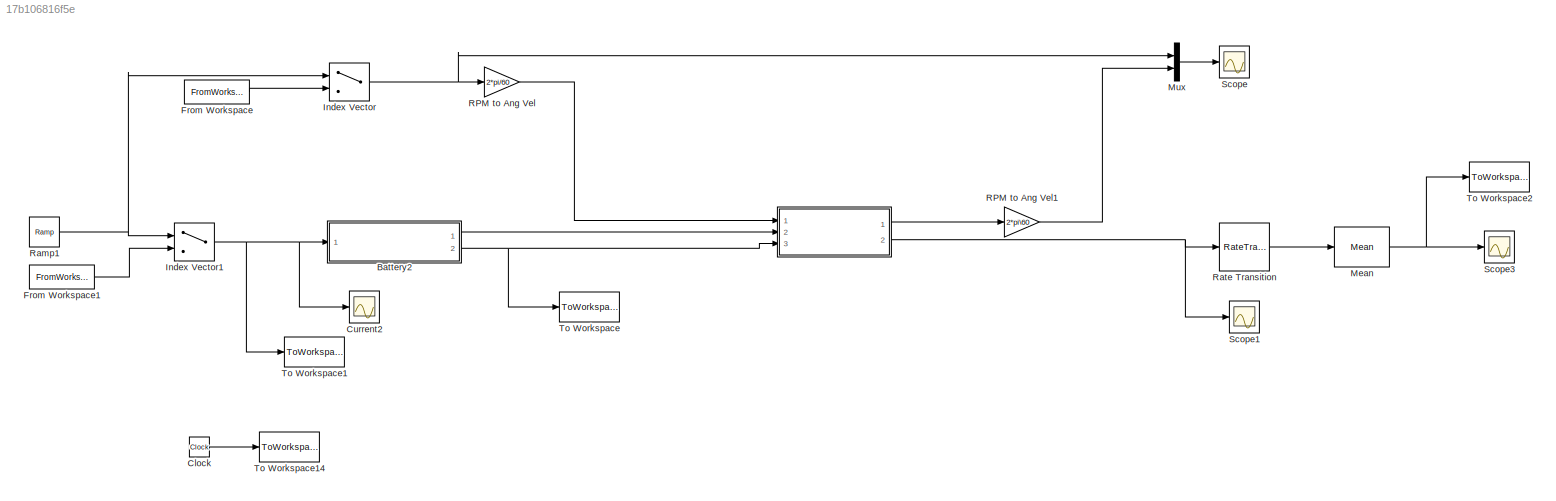
MODEL slx_17b106816f5e
KIND model
CONFIG AbsTol = auto
CONFIG EnableMultiTasking = off
CONFIG FixedStep = 0.001
CONFIG MaxStep = auto
CONFIG MinStep = auto
CONFIG RelTol = 1e-4
CONFIG SampleTimeConstraint = Unconstrained
CONFIG Solver = FixedStepAuto
CONFIG SolverName = FixedStepAuto
CONFIG StartTime = 0.0
CONFIG StopTime = 2500
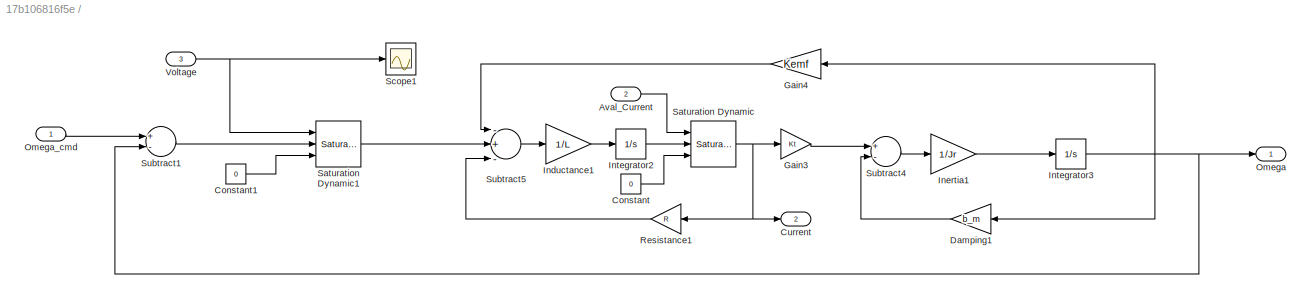
BLOCK [SubSystem]  
  Ports = [3, 2]
  RequestExecContextInheritance = off
  Variant = off
BLOCK [Inport]  /Aval_Current
  IconDisplay = Port number
  Port = 2
BLOCK [Constant]  /Constant
  Value = 0
BLOCK [Constant]  /Constant1
  Value = 0
BLOCK [Outport]  /Current 
  IconDisplay = Port number
  Port = 2
BLOCK [Gain]  /Damping1
  Gain = b_m
  OutDataTypeStr = Inherit: Inherit via internal rule
  ParamDataTypeStr = Inherit: Inherit via internal rule
  SaturateOnIntegerOverflow = off
BLOCK [Gain]  /Gain3
  Gain = Kt
  OutDataTypeStr = Inherit: Inherit via internal rule
  ParamDataTypeStr = Inherit: Inherit via internal rule
  SaturateOnIntegerOverflow = off
BLOCK [Gain]  /Gain4
  Gain = Kemf
  OutDataTypeStr = Inherit: Inherit via internal rule
  ParamDataTypeStr = Inherit: Inherit via internal rule
  SaturateOnIntegerOverflow = off
BLOCK [Gain]  /Inductance1
  Gain = 1/L
  OutDataTypeStr = Inherit: Inherit via internal rule
  ParamDataTypeStr = Inherit: Inherit via internal rule
  SaturateOnIntegerOverflow = off
BLOCK [Gain]  /Inertia1
  Gain = 1/Jr
  OutDataTypeStr = Inherit: Inherit via internal rule
  ParamDataTypeStr = Inherit: Inherit via internal rule
  SaturateOnIntegerOverflow = off
BLOCK [Integrator]  /Integrator2
  LimitOutput = on
  LowerSaturationLimit = 0
  Ports = [1, 1]
BLOCK [Integrator]  /Integrator3
  LimitOutput = on
  LowerSaturationLimit = 0
  Ports = [1, 1]
BLOCK [Outport]  /Omega
  IconDisplay = Port number
BLOCK [Inport]  /Omega_cmd
  IconDisplay = Port number
BLOCK [Gain]  /Resistance1
  Gain = R
  OutDataTypeStr = Inherit: Inherit via internal rule
  ParamDataTypeStr = Inherit: Inherit via internal rule
  SaturateOnIntegerOverflow = off
BLOCK [Reference]  /Saturation Dynamic  REF=simulink/Discontinuities/Saturation
Dynamic
  Ports = [3, 1]
  SourceBlock = simulink/Discontinuities/Saturation\nDynamic
  SourceProductBaseCode = SL
  SourceProductName = Simulink
  SourceType = Saturation Dynamic
BLOCK [Reference]  /Saturation Dynamic1  REF=simulink/Discontinuities/Saturation
Dynamic
  Ports = [3, 1]
  SourceBlock = simulink/Discontinuities/Saturation\nDynamic
  SourceProductBaseCode = SL
  SourceProductName = Simulink
  SourceType = Saturation Dynamic
BLOCK [Scope]  /Scope1
  NumInputPorts = 1
  Ports = [1]
  ScopeSpecificationString = Simulink.scopes.TimeScopeBlockCfg('CurrentConfiguration', extmgr.ConfigurationSet(extmgr.Configuration('Core','General UI',true),extmgr.Configuration('Core','Source UI',true),extmgr.Configuration('Sources','WiredSimulink',true,'DataLoggingVariableName','ScopeData6','DataLoggingSaveFormat','Array','DataLoggingDecimation','1'),extmgr.Configuration('Visuals','Time Domain',true,'SerializedDisplays',{s...<+1610ch>
BLOCK [Sum]  /Subtract1
  InputSameDT = off
  Inputs = +-
  OutDataTypeStr = Inherit: Inherit via internal rule
  Ports = [2, 1]
  SaturateOnIntegerOverflow = off
BLOCK [Sum]  /Subtract4
  InputSameDT = off
  Inputs = +-
  OutDataTypeStr = Inherit: Inherit via internal rule
  Ports = [2, 1]
  SaturateOnIntegerOverflow = off
BLOCK [Sum]  /Subtract5
  InputSameDT = off
  Inputs = -+-
  OutDataTypeStr = Inherit: Inherit via internal rule
  Ports = [3, 1]
  SaturateOnIntegerOverflow = off
BLOCK [Inport]  /Voltage
  IconDisplay = Port number
  Port = 3
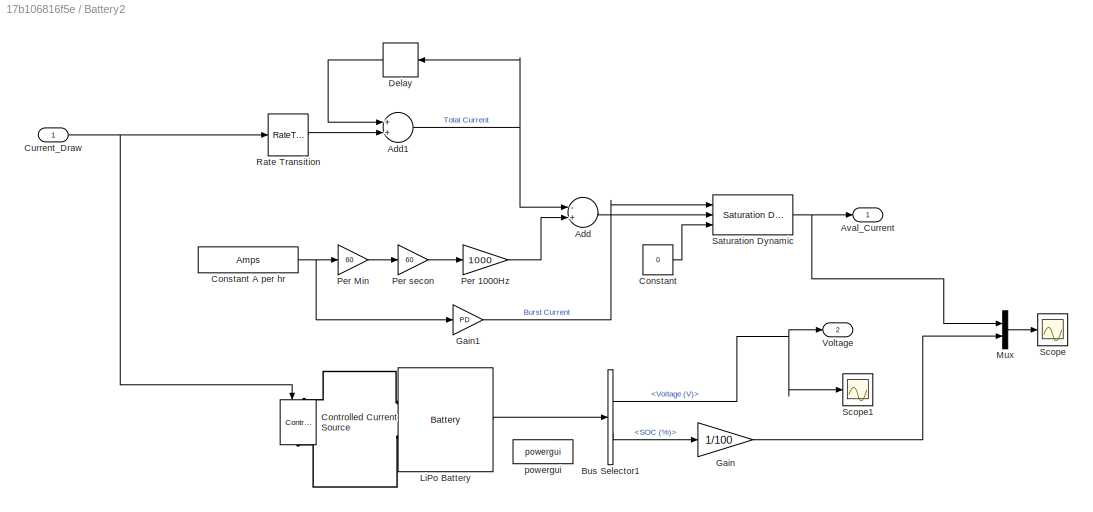
BLOCK [SubSystem] Battery2
  Ports = [1, 2]
  RequestExecContextInheritance = off
  Variant = off
BLOCK [Sum] Battery2/Add
  InputSameDT = off
  Inputs = -+
  OutDataTypeStr = Inherit: Inherit via internal rule
  Ports = [2, 1]
  SaturateOnIntegerOverflow = off
BLOCK [Sum] Battery2/Add1
  InputSameDT = off
  OutDataTypeStr = Inherit: Inherit via internal rule
  Ports = [2, 1]
  SaturateOnIntegerOverflow = off
BLOCK [Outport] Battery2/Aval_Current
  IconDisplay = Port number
BLOCK [BusSelector] Battery2/Bus Selector1
  OutputAsBus = off
  OutputSignals = Voltage (V),SOC (%)
  Ports = [1, 2]
BLOCK [Constant] Battery2/Constant
  Value = 0
BLOCK [Constant] Battery2/Constant A per hr
  Value = Amps
BLOCK [Reference] Battery2/Controlled Current Source  REF=powerlib/Electrical
Sources/Controlled Current Source
  Ports = [1, 0, 0, 0, 0, 1, 1]
  SourceBlock = powerlib/Electrical\nSources/Controlled Current Source
  SourceProductBaseCode = PS
  SourceProductName = Simscape Power Systems
  SourceType = Controlled Current Source
BLOCK [Inport] Battery2/Current_Draw
  IconDisplay = Port number
BLOCK [Delay] Battery2/Delay
  DelayLength = 1
  InitialCondition = 0
  InputPortMap = u0
  Ports = [1, 1]
BLOCK [Gain] Battery2/Gain
  Gain = 1/100
  OutDataTypeStr = Inherit: Inherit via internal rule
  ParamDataTypeStr = Inherit: Inherit via internal rule
  SaturateOnIntegerOverflow = off
BLOCK [Gain] Battery2/Gain1
  Gain = PD
  OutDataTypeStr = Inherit: Inherit via internal rule
  ParamDataTypeStr = Inherit: Inherit via internal rule
  SaturateOnIntegerOverflow = off
BLOCK [Reference] Battery2/LiPo Battery   REF=electricdrivelib/Extra Sources/Battery
  Ports = [0, 1, 0, 0, 0, 2]
  SourceBlock = electricdrivelib/Extra Sources/Battery
  SourceProductBaseCode = PS
  SourceProductName = Simscape Power Systems
  SourceType = Battery
BLOCK [Mux] Battery2/Mux
  DisplayOption = bar
  Inputs = 2
  Ports = [2, 1]
BLOCK [Gain] Battery2/Per 1000Hz
  Gain = 1000
  OutDataTypeStr = Inherit: Inherit via internal rule
  ParamDataTypeStr = Inherit: Inherit via internal rule
  SaturateOnIntegerOverflow = off
BLOCK [Gain] Battery2/Per Min
  Gain = 60
  OutDataTypeStr = Inherit: Inherit via internal rule
  ParamDataTypeStr = Inherit: Inherit via internal rule
  SaturateOnIntegerOverflow = off
BLOCK [Gain] Battery2/Per secon
  Gain = 60
  OutDataTypeStr = Inherit: Inherit via internal rule
  ParamDataTypeStr = Inherit: Inherit via internal rule
  SaturateOnIntegerOverflow = off
BLOCK [RateTransition] Battery2/Rate Transition
  OutPortSampleTime = 0.001
  OutPortSampleTimeMultiple = 0
BLOCK [Reference] Battery2/Saturation Dynamic  REF=simulink/Discontinuities/Saturation
Dynamic
  Ports = [3, 1]
  SourceBlock = simulink/Discontinuities/Saturation\nDynamic
  SourceProductBaseCode = SL
  SourceProductName = Simulink
  SourceType = Saturation Dynamic
BLOCK [Scope] Battery2/Scope
  NumInputPorts = 1
  Ports = [1]
  ScopeSpecificationString = Simulink.scopes.TimeScopeBlockCfg('CurrentConfiguration', extmgr.ConfigurationSet(extmgr.Configuration('Core','General UI',true),extmgr.Configuration('Core','Source UI',true),extmgr.Configuration('Sources','WiredSimulink',true,'DataLoggingVariableName','ScopeData1'),extmgr.Configuration('Visuals','Time Domain',true,'SerializedDisplays',{struct('MinYLimReal','-0.0305','MaxYLimReal','1.1145','YLabel...<+1427ch>
BLOCK [Scope] Battery2/Scope1
  NumInputPorts = 1
  Ports = [1]
  ScopeSpecificationString = Simulink.scopes.TimeScopeBlockCfg('CurrentConfiguration', extmgr.ConfigurationSet(extmgr.Configuration('Core','General UI',true),extmgr.Configuration('Core','Source UI',true),extmgr.Configuration('Sources','WiredSimulink',true,'DataLoggingVariableName','ScopeData1'),extmgr.Configuration('Visuals','Time Domain',true,'SerializedDisplays',{struct('MinYLimReal','11.74308','MaxYLimReal','11.77119','YLa...<+1434ch>
BLOCK [Outport] Battery2/Voltage
  IconDisplay = Port number
  Port = 2
BLOCK [Reference] Battery2/powergui  REF=powerlib/powergui
  Ports = []
  SourceBlock = powerlib/powergui
  SourceProductBaseCode = PS
  SourceProductName = Simscape Power Systems
  SourceType = PSB option menu block
BLOCK [Clock] Clock
BLOCK [Scope] Current2
  NumInputPorts = 1
  Ports = [1]
  ScopeSpecificationString = Simulink.scopes.TimeScopeBlockCfg('CurrentConfiguration', extmgr.ConfigurationSet(extmgr.Configuration('Core','General UI',true),extmgr.Configuration('Core','Source UI',true),extmgr.Configuration('Sources','WiredSimulink',true,'DataLoggingVariableName','ScopeData5'),extmgr.Configuration('Visuals','Time Domain',true,'SerializedDisplays',{struct('MinYLimReal','-0.86032','MaxYLimReal','8.49479','YLab...<+1420ch>
BLOCK [FromWorkspace] From Workspace
  OutDataTypeStr = double
  VariableName = RPM'
  ZeroCross = on
BLOCK [FromWorkspace] From Workspace1
  OutDataTypeStr = double
  VariableName = Current'
  ZeroCross = on
BLOCK [MultiPortSwitch] Index Vector
  DataPortOrder = Zero-based contiguous
  InputSameDT = off
  Inputs = 1
  Ports = [2, 1]
  SaturateOnIntegerOverflow = off
  zeroidx = on
BLOCK [MultiPortSwitch] Index Vector1
  DataPortOrder = Zero-based contiguous
  InputSameDT = off
  Inputs = 1
  Ports = [2, 1]
  SaturateOnIntegerOverflow = off
  zeroidx = on
BLOCK [Reference] Mean  REF=dspstat3/Mean
  Ports = [1, 1]
  SourceBlock = dspstat3/Mean
  SourceProductBaseCode = DS
  SourceProductName = DSP System Toolbox
  SourceType = Mean
  UserDataPersistent = on
BLOCK [Mux] Mux
  DisplayOption = bar
  Inputs = 2
  Ports = [2, 1]
BLOCK [Gain] RPM to Ang Vel
  Gain = 2*pi/60
  OutDataTypeStr = Inherit: Inherit via internal rule
  ParamDataTypeStr = Inherit: Inherit via internal rule
  SaturateOnIntegerOverflow = off
BLOCK [Gain] RPM to Ang Vel1
  Gain = 2*pi\60
  OutDataTypeStr = Inherit: Inherit via internal rule
  ParamDataTypeStr = Inherit: Inherit via internal rule
  SaturateOnIntegerOverflow = off
BLOCK [Reference] Ramp1  REF=simulink/Sources/Ramp
  Ports = [0, 1]
  SourceBlock = simulink/Sources/Ramp
  SourceProductBaseCode = SL
  SourceProductName = Simulink
  SourceType = Ramp
BLOCK [RateTransition] Rate Transition
  OutPortSampleTime = 0.001
BLOCK [Scope] Scope
  NumInputPorts = 1
  Ports = [1]
  ScopeSpecificationString = Simulink.scopes.TimeScopeBlockCfg('CurrentConfiguration', extmgr.ConfigurationSet(extmgr.Configuration('Core','General UI',true),extmgr.Configuration('Core','Source UI',true),extmgr.Configuration('Sources','WiredSimulink',true,'DataLoggingVariableName','ScopeData2'),extmgr.Configuration('Visuals','Time Domain',true,'SerializedDisplays',{struct('MinYLimReal','-1170.125','MaxYLimReal','10531.125','Y...<+1474ch>
BLOCK [Scope] Scope1
  NumInputPorts = 1
  Ports = [1]
  ScopeSpecificationString = Simulink.scopes.TimeScopeBlockCfg('CurrentConfiguration', extmgr.ConfigurationSet(extmgr.Configuration('Core','General UI',true),extmgr.Configuration('Core','Source UI',true),extmgr.Configuration('Sources','WiredSimulink',true,'DataLoggingVariableName','ScopeData1'),extmgr.Configuration('Visuals','Time Domain',true,'SerializedDisplays',{struct('MinYLimReal','-10.5','MaxYLimReal','94.5','YLabelReal...<+1424ch>
BLOCK [Scope] Scope3
  NumInputPorts = 1
  Ports = [1]
  ScopeSpecificationString = Simulink.scopes.TimeScopeBlockCfg('CurrentConfiguration', extmgr.ConfigurationSet(extmgr.Configuration('Core','General UI',true),extmgr.Configuration('Core','Source UI',true),extmgr.Configuration('Sources','WiredSimulink',true,'DataLoggingVariableName','ScopeData7'),extmgr.Configuration('Visuals','Time Domain',true,'SerializedDisplays',{struct('MinYLimReal','-0.36032','MaxYLimReal','3.24287','YLab...<+1411ch>
BLOCK [ToWorkspace] To Workspace
  FixptAsFi = on
  MaxDataPoints = inf
  Ports = [1]
  SampleTime = 0.001
  Save2DSignal = 2-D array (concatenate along first dimension)
  VariableName = Voltage_
BLOCK [ToWorkspace] To Workspace1
  FixptAsFi = on
  MaxDataPoints = inf
  Ports = [1]
  SampleTime = 0.001
  Save2DSignal = 2-D array (concatenate along first dimension)
  VariableName = Current_
BLOCK [ToWorkspace] To Workspace14
  FixptAsFi = on
  MaxDataPoints = inf
  Ports = [1]
  SampleTime = 0.001
  Save2DSignal = 2-D array (concatenate along first dimension)
  VariableName = time
BLOCK [ToWorkspace] To Workspace2
  FixptAsFi = on
  MaxDataPoints = inf
  Ports = [1]
  SampleTime = 0.001
  Save2DSignal = 2-D array (concatenate along first dimension)
  VariableName = Motor_voltage1
LINE  /Aval_Current:1 ->  /Saturation Dynamic:1
LINE  /Constant1:1 ->  /Saturation Dynamic1:3
LINE  /Constant:1 ->  /Saturation Dynamic:3
LINE  /Damping1:1 ->  /Subtract4:2
LINE  /Gain3:1 ->  /Subtract4:1
LINE  /Gain4:1 ->  /Subtract5:1
LINE  /Inductance1:1 ->  /Integrator2:1
LINE  /Inertia1:1 ->  /Integrator3:1
LINE  /Integrator2:1 ->  /Saturation Dynamic:2
NET  /Integrator3:1 ->  /Damping1:1,  /Gain4:1,  /Omega:1,  /Subtract1:2
LINE  /Omega_cmd:1 ->  /Subtract1:1
LINE  /Resistance1:1 ->  /Subtract5:3
LINE  /Saturation Dynamic1:1 ->  /Subtract5:2
NET  /Saturation Dynamic:1 ->  /Current :1,  /Gain3:1,  /Resistance1:1
LINE  /Subtract1:1 ->  /Saturation Dynamic1:2
LINE  /Subtract4:1 ->  /Inertia1:1
LINE  /Subtract5:1 ->  /Inductance1:1
NET  /Voltage:1 ->  /Saturation Dynamic1:1,  /Scope1:1
LINE  :1 -> RPM to Ang Vel1:1
NET  :2 -> Rate Transition:1, Scope1:1
NET Battery2/Add1:1 -> Battery2/Add:1, Battery2/Delay:1
LINE Battery2/Add:1 -> Battery2/Saturation Dynamic:2
NET Battery2/Bus Selector1:1 -> Battery2/Scope1:1, Battery2/Voltage:1
LINE Battery2/Bus Selector1:2 -> Battery2/Gain:1
NET Battery2/Constant A per hr:1 -> Battery2/Gain1:1, Battery2/Per Min:1
LINE Battery2/Constant:1 -> Battery2/Saturation Dynamic:3
NET Battery2/Current_Draw:1 -> Battery2/Controlled Current Source:1, Battery2/Rate Transition:1
LINE Battery2/Delay:1 -> Battery2/Add1:1
LINE Battery2/Gain1:1 -> Battery2/Saturation Dynamic:1
LINE Battery2/Gain:1 -> Battery2/Mux:2
LINE Battery2/LiPo Battery :1 -> Battery2/Bus Selector1:1
LINE Battery2/Mux:1 -> Battery2/Scope:1
LINE Battery2/Per 1000Hz:1 -> Battery2/Add:2
LINE Battery2/Per Min:1 -> Battery2/Per secon:1
LINE Battery2/Per secon:1 -> Battery2/Per 1000Hz:1
LINE Battery2/Rate Transition:1 -> Battery2/Add1:2
NET Battery2/Saturation Dynamic:1 -> Battery2/Aval_Current:1, Battery2/Mux:1
LINE Battery2:1 ->  :2
NET Battery2:2 ->  :3, To Workspace:1
LINE Clock:1 -> To Workspace14:1
LINE From Workspace1:1 -> Index Vector1:2
LINE From Workspace:1 -> Index Vector:2
NET Index Vector1:1 -> Battery2:1, Current2:1, To Workspace1:1
NET Index Vector:1 -> Mux:1, RPM to Ang Vel:1
NET Mean:1 -> Scope3:1, To Workspace2:1
LINE Mux:1 -> Scope:1
LINE RPM to Ang Vel1:1 -> Mux:2
LINE RPM to Ang Vel:1 ->  :1
NET Ramp1:1 -> Index Vector1:1, Index Vector:1
LINE Rate Transition:1 -> Mean:1
PLINE Battery2/Controlled Current Source:LConn1 -- Battery2/LiPo Battery :LConn1
PLINE Battery2/Controlled Current Source:RConn1 -- Battery2/LiPo Battery :LConn2
note: NET lines group one-source signal fan-out (src -> all destinations, sorted); 1:1 wires keep LINE
